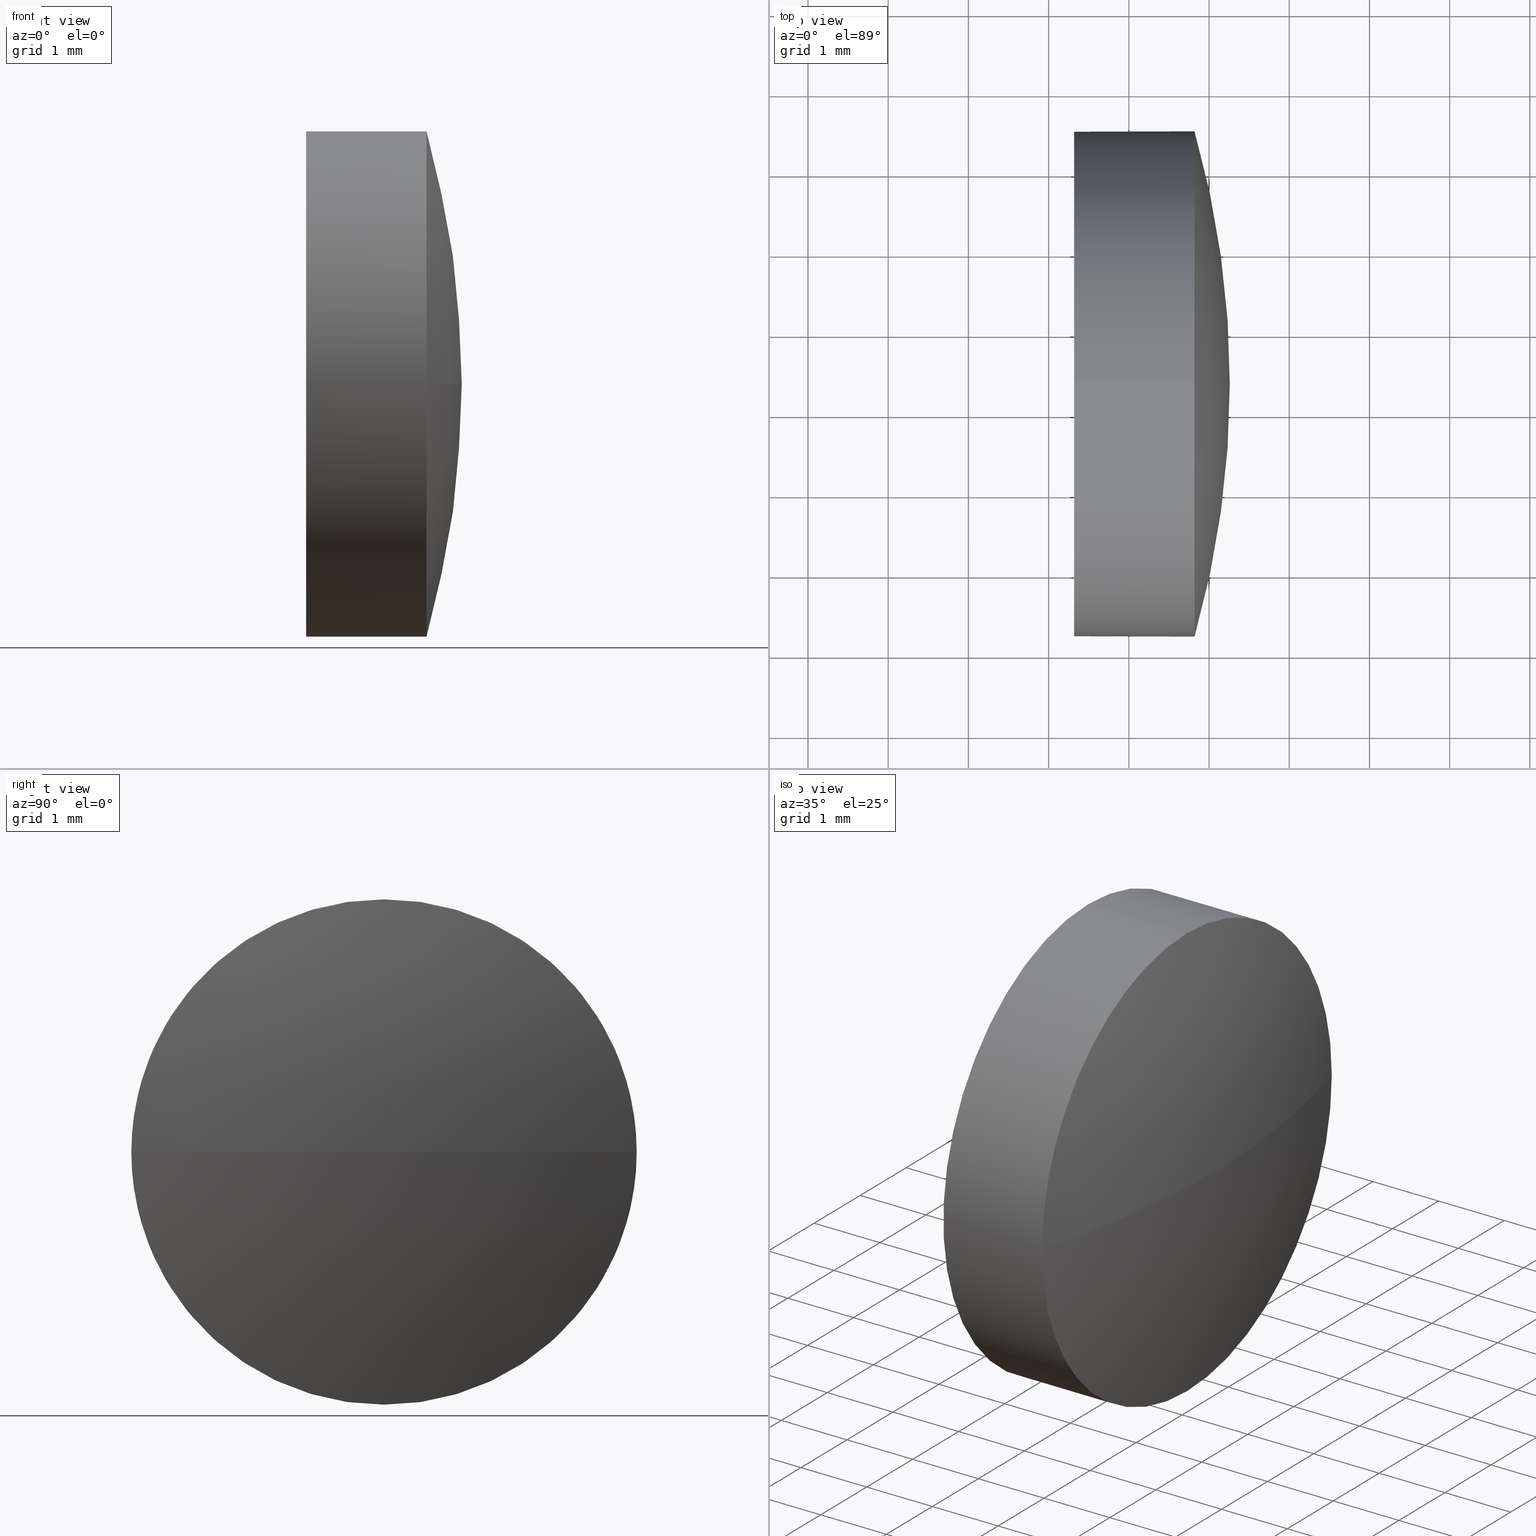
[diagram: canonical four-view strip — front | top / right | iso, engineering-drawing reading convention]
A machine part, canonical four-view strip (front | top / right | iso — engineering-drawing reading convention). The complete STEP part file that produces these views, byte-faithful:
ISO-10303-21;
HEADER;
FILE_DESCRIPTION (( 'STEP AP214' ),
    '1' );
FILE_NAME ('100353.STEP',
    '2019-06-03T03:50:09',
    ( '' ),
    ( '' ),
    'SwSTEP 2.0',
    'SolidWorks 2016',
    '' );
FILE_SCHEMA (( 'AUTOMOTIVE_DESIGN' ));
ENDSEC;

DATA;
#1 = APPLICATION_PROTOCOL_DEFINITION ( 'draft international standard', 'automotive_design', 1998, #130 ) ;
#2 = PRESENTATION_LAYER_ASSIGNMENT (  '', '', ( #144 ) ) ;
#3 = VERTEX_POINT ( 'NONE', #67 ) ;
#4 = ORIENTED_EDGE ( 'NONE', *, *, #133, .T. ) ;
#5 = CIRCLE ( 'NONE', #92, 3.150000000000013700 ) ;
#6 = VERTEX_POINT ( 'NONE', #104 ) ;
#7 = CARTESIAN_POINT ( 'NONE',  ( 555.8187275599364100, 146.3616492016622000, -3.150000000000013700 ) ) ;
#8 = PRODUCT ( '100353', '100353', '', ( #155 ) ) ;
#9 = FACE_OUTER_BOUND ( 'NONE', #122, .T. ) ;
#10 = ADVANCED_FACE ( 'NONE', ( #41 ), #69, .F. ) ;
#11 = ORIENTED_EDGE ( 'NONE', *, *, #105, .F. ) ;
#12 = DIRECTION ( 'NONE',  ( 0.0000000000000000000, 0.0000000000000000000, 1.000000000000000000 ) ) ;
#13 = MECHANICAL_DESIGN_GEOMETRIC_PRESENTATION_REPRESENTATION (  '', ( #144 ), #65 ) ;
#14 = DIRECTION ( 'NONE',  ( -1.000000000000000000, -0.0000000000000000000, -0.0000000000000000000 ) ) ;
#15 = AXIS2_PLACEMENT_3D ( 'NONE', #125, #43, #168 ) ;
#16 = ADVANCED_FACE ( 'NONE', ( #91 ), #38, .T. ) ;
#17 = DIRECTION ( 'NONE',  ( -1.000000000000000000, -0.0000000000000000000, -0.0000000000000000000 ) ) ;
#18 = VERTEX_POINT ( 'NONE', #179 ) ;
#19 = EDGE_CURVE ( 'NONE', #25, #3, #103, .T. ) ;
#20 = ORIENTED_EDGE ( 'NONE', *, *, #37, .T. ) ;
#21 = SHAPE_DEFINITION_REPRESENTATION ( #114, #121 ) ;
#22 = EDGE_LOOP ( 'NONE', ( #184, #119, #149, #157 ) ) ;
#23 = ORIENTED_EDGE ( 'NONE', *, *, #19, .F. ) ;
#24 = FACE_OUTER_BOUND ( 'NONE', #93, .T. ) ;
#25 = VERTEX_POINT ( 'NONE', #177 ) ;
#26 = EDGE_CURVE ( 'NONE', #25, #63, #170, .T. ) ;
#27 = CARTESIAN_POINT ( 'NONE',  ( 544.7631593781184200, 146.3616492016621700, 0.0000000000000000000 ) ) ;
#28 =( NAMED_UNIT ( * ) SI_UNIT ( $, .STERADIAN. ) SOLID_ANGLE_UNIT ( ) );
#29 = CARTESIAN_POINT ( 'NONE',  ( 553.4580894711874600, 146.3616492016622000, -3.150000000000013700 ) ) ;
#30 = MECHANICAL_DESIGN_GEOMETRIC_PRESENTATION_REPRESENTATION (  '', ( #52 ), #175 ) ;
#31 = CARTESIAN_POINT ( 'NONE',  ( 544.7631593781184200, 146.3616492016621700, 0.0000000000000000000 ) ) ;
#32 = EDGE_LOOP ( 'NONE', ( #113, #20, #174, #11 ) ) ;
#33 = CARTESIAN_POINT ( 'NONE',  ( 0.0000000000000000000, 0.0000000000000000000, 0.0000000000000000000 ) ) ;
#34 = APPLICATION_PROTOCOL_DEFINITION ( 'draft international standard', 'automotive_design', 1998, #89 ) ;
#35 = EDGE_CURVE ( 'NONE', #3, #6, #75, .T. ) ;
#36 =( NAMED_UNIT ( * ) SI_UNIT ( $, .STERADIAN. ) SOLID_ANGLE_UNIT ( ) );
#37 = EDGE_CURVE ( 'NONE', #78, #18, #54, .T. ) ;
#38 = SPHERICAL_SURFACE ( 'NONE', #64, 11.49556818181808300 ) ;
#39 = VERTEX_POINT ( 'NONE', #7 ) ;
#40 = UNCERTAINTY_MEASURE_WITH_UNIT (LENGTH_MEASURE( 1.000000000000000100E-005 ), #102, 'distance_accuracy_value', 'NONE');
#41 = FACE_OUTER_BOUND ( 'NONE', #60, .T. ) ;
#42 = DIRECTION ( 'NONE',  ( 0.0000000000000000000, 0.0000000000000000000, 1.000000000000000000 ) ) ;
#43 = DIRECTION ( 'NONE',  ( -1.000000000000000000, -0.0000000000000000000, -0.0000000000000000000 ) ) ;
#44 = DIRECTION ( 'NONE',  ( -0.0000000000000000000, 0.0000000000000000000, -1.000000000000000000 ) ) ;
#45 = DIRECTION ( 'NONE',  ( 0.0000000000000000000, 0.0000000000000000000, 1.000000000000000000 ) ) ;
#46 = UNCERTAINTY_MEASURE_WITH_UNIT (LENGTH_MEASURE( 1.000000000000000100E-005 ), #173, 'distance_accuracy_value', 'NONE');
#47 = AXIS2_PLACEMENT_3D ( 'NONE', #127, #57, #100 ) ;
#48 =( NAMED_UNIT ( * ) PLANE_ANGLE_UNIT ( ) SI_UNIT ( $, .RADIAN. ) );
#49 = PRODUCT_DEFINITION_FORMATION_WITH_SPECIFIED_SOURCE ( '�κ�', '', #8, .NOT_KNOWN. ) ;
#50 = AXIS2_PLACEMENT_3D ( 'NONE', #107, #14, #12 ) ;
#51 = LINE ( 'NONE', #29, #136 ) ;
#52 = STYLED_ITEM ( 'NONE', ( #153 ), #106 ) ;
#53 = SPHERICAL_SURFACE ( 'NONE', #135, 11.49556818181808300 ) ;
#54 = CIRCLE ( 'NONE', #116, 11.49556818181807200 ) ;
#55 = ORIENTED_EDGE ( 'NONE', *, *, #35, .T. ) ;
#56 =( GEOMETRIC_REPRESENTATION_CONTEXT ( 3 ) GLOBAL_UNCERTAINTY_ASSIGNED_CONTEXT ( ( #40 ) ) GLOBAL_UNIT_ASSIGNED_CONTEXT ( ( #102, #48, #36 ) ) REPRESENTATION_CONTEXT ( 'NONE', 'WORKASPACE' ) );
#57 = DIRECTION ( 'NONE',  ( -1.000000000000000000, -0.0000000000000000000, -0.0000000000000000000 ) ) ;
#58 = SURFACE_STYLE_USAGE ( .BOTH. , #81 ) ;
#59 =( LENGTH_UNIT ( ) NAMED_UNIT ( * ) SI_UNIT ( .MILLI., .METRE. ) );
#60 = EDGE_LOOP ( 'NONE', ( #55, #4 ) ) ;
#61 = FILL_AREA_STYLE ('',( #108 ) ) ;
#62 = PRODUCT_DEFINITION_CONTEXT ( 'detailed design', #89, 'design' ) ;
#63 = VERTEX_POINT ( 'NONE', #161 ) ;
#64 = AXIS2_PLACEMENT_3D ( 'NONE', #27, #134, #94 ) ;
#65 =( GEOMETRIC_REPRESENTATION_CONTEXT ( 3 ) GLOBAL_UNCERTAINTY_ASSIGNED_CONTEXT ( ( #46 ) ) GLOBAL_UNIT_ASSIGNED_CONTEXT ( ( #173, #156, #128 ) ) REPRESENTATION_CONTEXT ( 'NONE', 'WORKASPACE' ) );
#66 = SURFACE_STYLE_FILL_AREA ( #151 ) ;
#67 = CARTESIAN_POINT ( 'NONE',  ( 554.3187275599364100, 146.3616492016622000, 3.150000000000013700 ) ) ;
#68 = EDGE_CURVE ( 'NONE', #39, #18, #117, .T. ) ;
#69 = PLANE ( 'NONE',  #138 ) ;
#70 = DIRECTION ( 'NONE',  ( 0.0000000000000000000, 1.000000000000000000, 1.224646799147354200E-016 ) ) ;
#71 = DIRECTION ( 'NONE',  ( -0.0000000000000000000, 0.0000000000000000000, 1.000000000000000000 ) ) ;
#72 = DIRECTION ( 'NONE',  ( 0.0000000000000000000, 0.0000000000000000000, 1.000000000000000000 ) ) ;
#73 = AXIS2_PLACEMENT_3D ( 'NONE', #98, #17, #72 ) ;
#74 = AXIS2_PLACEMENT_3D ( 'NONE', #33, #101, #111 ) ;
#75 = CIRCLE ( 'NONE', #73, 3.150000000000013700 ) ;
#76 = PRESENTATION_LAYER_ASSIGNMENT (  '', '', ( #52 ) ) ;
#77 = ORIENTED_EDGE ( 'NONE', *, *, #19, .T. ) ;
#78 = VERTEX_POINT ( 'NONE', #152 ) ;
#79 = CARTESIAN_POINT ( 'NONE',  ( 553.4580894711874600, 146.3616492016622000, 3.150000000000013700 ) ) ;
#80 = AXIS2_PLACEMENT_3D ( 'NONE', #84, #96, #109 ) ;
#81 = SURFACE_SIDE_STYLE ('',( #66 ) ) ;
#82 = CARTESIAN_POINT ( 'NONE',  ( 544.7631593781184200, 146.3616492016621700, 0.0000000000000000000 ) ) ;
#83 = ORIENTED_EDGE ( 'NONE', *, *, #163, .F. ) ;
#84 = CARTESIAN_POINT ( 'NONE',  ( 555.8187275599364100, 146.3616492016622000, 0.0000000000000000000 ) ) ;
#85 = DIRECTION ( 'NONE',  ( 1.000000000000000000, 0.0000000000000000000, 0.0000000000000000000 ) ) ;
#86 = CARTESIAN_POINT ( 'NONE',  ( 544.7631593781184200, 146.3616492016621700, 0.0000000000000000000 ) ) ;
#87 = SURFACE_SIDE_STYLE ('',( #126 ) ) ;
#88 = EDGE_CURVE ( 'NONE', #18, #25, #5, .T. ) ;
#89 = APPLICATION_CONTEXT ( 'automotive_design' ) ;
#90 = ORIENTED_EDGE ( 'NONE', *, *, #68, .T. ) ;
#91 = FACE_OUTER_BOUND ( 'NONE', #22, .T. ) ;
#92 = AXIS2_PLACEMENT_3D ( 'NONE', #166, #185, #45 ) ;
#93 = EDGE_LOOP ( 'NONE', ( #131, #115, #160, #23, #112 ) ) ;
#94 = DIRECTION ( 'NONE',  ( 0.0000000000000000000, 1.000000000000000000, 0.0000000000000000000 ) ) ;
#95 = ADVANCED_FACE ( 'NONE', ( #123 ), #53, .T. ) ;
#96 = DIRECTION ( 'NONE',  ( -1.000000000000000000, -0.0000000000000000000, -0.0000000000000000000 ) ) ;
#97 = DIRECTION ( 'NONE',  ( -1.000000000000000000, -0.0000000000000000000, -0.0000000000000000000 ) ) ;
#98 = CARTESIAN_POINT ( 'NONE',  ( 554.3187275599364100, 146.3616492016622000, 0.0000000000000000000 ) ) ;
#99 = VECTOR ( 'NONE', #162, 1000.000000000000000 ) ;
#100 = DIRECTION ( 'NONE',  ( 0.0000000000000000000, 0.0000000000000000000, 1.000000000000000000 ) ) ;
#101 = DIRECTION ( 'NONE',  ( 0.0000000000000000000, 0.0000000000000000000, 1.000000000000000000 ) ) ;
#102 =( LENGTH_UNIT ( ) NAMED_UNIT ( * ) SI_UNIT ( .MILLI., .METRE. ) );
#103 = LINE ( 'NONE', #79, #99 ) ;
#104 = CARTESIAN_POINT ( 'NONE',  ( 554.3187275599364100, 146.3616492016622000, -3.150000000000013700 ) ) ;
#105 = EDGE_CURVE ( 'NONE', #63, #39, #158, .T. ) ;
#106 = MANIFOLD_SOLID_BREP ( '��ת1', #159 ) ;
#107 = CARTESIAN_POINT ( 'NONE',  ( 553.4580894711874600, 146.3616492016622000, 0.0000000000000000000 ) ) ;
#108 = FILL_AREA_STYLE_COLOUR ( '', #132 ) ;
#109 = DIRECTION ( 'NONE',  ( 0.0000000000000000000, 0.0000000000000000000, 1.000000000000000000 ) ) ;
#110 = COLOUR_RGB ( '',1.000000000000000000, 1.000000000000000000, 1.000000000000000000 ) ;
#111 = DIRECTION ( 'NONE',  ( 1.000000000000000000, 0.0000000000000000000, 0.0000000000000000000 ) ) ;
#112 = ORIENTED_EDGE ( 'NONE', *, *, #26, .T. ) ;
#113 = ORIENTED_EDGE ( 'NONE', *, *, #176, .F. ) ;
#114 = PRODUCT_DEFINITION_SHAPE ( 'NONE', 'NONE',  #167 ) ;
#115 = ORIENTED_EDGE ( 'NONE', *, *, #163, .T. ) ;
#116 = AXIS2_PLACEMENT_3D ( 'NONE', #86, #171, #70 ) ;
#117 = CIRCLE ( 'NONE', #80, 3.150000000000013700 ) ;
#118 = PRODUCT_RELATED_PRODUCT_CATEGORY ( 'part', '', ( #8 ) ) ;
#119 = ORIENTED_EDGE ( 'NONE', *, *, #176, .T. ) ;
#120 = CARTESIAN_POINT ( 'NONE',  ( 554.3187275599364100, 146.3616492016622000, 0.0000000000000000000 ) ) ;
#121 = ADVANCED_BREP_SHAPE_REPRESENTATION ( '100353', ( #106, #74 ), #56 ) ;
#122 = EDGE_LOOP ( 'NONE', ( #83, #90, #145, #77, #148 ) ) ;
#123 = FACE_OUTER_BOUND ( 'NONE', #32, .T. ) ;
#124 = DIRECTION ( 'NONE',  ( -1.000000000000000000, -0.0000000000000000000, -0.0000000000000000000 ) ) ;
#125 = CARTESIAN_POINT ( 'NONE',  ( 553.4580894711874600, 146.3616492016622000, 0.0000000000000000000 ) ) ;
#126 = SURFACE_STYLE_FILL_AREA ( #61 ) ;
#127 = CARTESIAN_POINT ( 'NONE',  ( 555.8187275599364100, 146.3616492016622000, 0.0000000000000000000 ) ) ;
#128 =( NAMED_UNIT ( * ) SI_UNIT ( $, .STERADIAN. ) SOLID_ANGLE_UNIT ( ) );
#129 = AXIS2_PLACEMENT_3D ( 'NONE', #154, #97, #42 ) ;
#130 = APPLICATION_CONTEXT ( 'automotive_design' ) ;
#131 = ORIENTED_EDGE ( 'NONE', *, *, #105, .T. ) ;
#132 = COLOUR_RGB ( '',1.000000000000000000, 1.000000000000000000, 1.000000000000000000 ) ;
#133 = EDGE_CURVE ( 'NONE', #6, #3, #178, .T. ) ;
#134 = DIRECTION ( 'NONE',  ( -0.0000000000000000000, 0.0000000000000000000, -1.000000000000000000 ) ) ;
#135 = AXIS2_PLACEMENT_3D ( 'NONE', #82, #44, #182 ) ;
#136 = VECTOR ( 'NONE', #150, 1000.000000000000000 ) ;
#137 = PRESENTATION_STYLE_ASSIGNMENT (( #140 ) ) ;
#138 = AXIS2_PLACEMENT_3D ( 'NONE', #120, #165, #146 ) ;
#139 = FILL_AREA_STYLE_COLOUR ( '', #110 ) ;
#140 = SURFACE_STYLE_USAGE ( .BOTH. , #87 ) ;
#141 = UNCERTAINTY_MEASURE_WITH_UNIT (LENGTH_MEASURE( 1.000000000000000100E-005 ), #59, 'distance_accuracy_value', 'NONE');
#142 = AXIS2_PLACEMENT_3D ( 'NONE', #31, #71, #85 ) ;
#143 = CIRCLE ( 'NONE', #142, 11.49556818181807200 ) ;
#144 = STYLED_ITEM ( 'NONE', ( #137 ), #121 ) ;
#145 = ORIENTED_EDGE ( 'NONE', *, *, #88, .T. ) ;
#146 = DIRECTION ( 'NONE',  ( 0.0000000000000000000, 0.0000000000000000000, -1.000000000000000000 ) ) ;
#147 = CYLINDRICAL_SURFACE ( 'NONE', #50, 3.150000000000013700 ) ;
#148 = ORIENTED_EDGE ( 'NONE', *, *, #133, .F. ) ;
#149 = ORIENTED_EDGE ( 'NONE', *, *, #26, .F. ) ;
#150 = DIRECTION ( 'NONE',  ( -1.000000000000000000, -0.0000000000000000000, -0.0000000000000000000 ) ) ;
#151 = FILL_AREA_STYLE ('',( #139 ) ) ;
#152 = CARTESIAN_POINT ( 'NONE',  ( 556.2587275599364600, 146.3616492016621700, 0.0000000000000000000 ) ) ;
#153 = PRESENTATION_STYLE_ASSIGNMENT (( #58 ) ) ;
#154 = CARTESIAN_POINT ( 'NONE',  ( 555.8187275599364100, 146.3616492016622000, 0.0000000000000000000 ) ) ;
#155 = PRODUCT_CONTEXT ( 'NONE', #130, 'mechanical' ) ;
#156 =( NAMED_UNIT ( * ) PLANE_ANGLE_UNIT ( ) SI_UNIT ( $, .RADIAN. ) );
#157 = ORIENTED_EDGE ( 'NONE', *, *, #88, .F. ) ;
#158 = CIRCLE ( 'NONE', #129, 3.150000000000013700 ) ;
#159 = CLOSED_SHELL ( 'NONE', ( #181, #95, #16, #172, #10 ) ) ;
#160 = ORIENTED_EDGE ( 'NONE', *, *, #35, .F. ) ;
#161 = CARTESIAN_POINT ( 'NONE',  ( 555.8187275599364100, 149.5116492016622100, 0.0000000000000000000 ) ) ;
#162 = DIRECTION ( 'NONE',  ( -1.000000000000000000, -0.0000000000000000000, -0.0000000000000000000 ) ) ;
#163 = EDGE_CURVE ( 'NONE', #39, #6, #51, .T. ) ;
#164 = CYLINDRICAL_SURFACE ( 'NONE', #15, 3.150000000000013700 ) ;
#165 = DIRECTION ( 'NONE',  ( 1.000000000000000000, 0.0000000000000000000, 0.0000000000000000000 ) ) ;
#166 = CARTESIAN_POINT ( 'NONE',  ( 555.8187275599364100, 146.3616492016622000, 0.0000000000000000000 ) ) ;
#167 = PRODUCT_DEFINITION ( 'δ֪', '', #49, #62 ) ;
#168 = DIRECTION ( 'NONE',  ( 0.0000000000000000000, 0.0000000000000000000, 1.000000000000000000 ) ) ;
#169 = CARTESIAN_POINT ( 'NONE',  ( 554.3187275599364100, 146.3616492016622000, 0.0000000000000000000 ) ) ;
#170 = CIRCLE ( 'NONE', #47, 3.150000000000013700 ) ;
#171 = DIRECTION ( 'NONE',  ( 0.0000000000000000000, 1.224646799147353200E-016, -1.000000000000000000 ) ) ;
#172 = ADVANCED_FACE ( 'NONE', ( #9 ), #147, .T. ) ;
#173 =( LENGTH_UNIT ( ) NAMED_UNIT ( * ) SI_UNIT ( .MILLI., .METRE. ) );
#174 = ORIENTED_EDGE ( 'NONE', *, *, #68, .F. ) ;
#175 =( GEOMETRIC_REPRESENTATION_CONTEXT ( 3 ) GLOBAL_UNCERTAINTY_ASSIGNED_CONTEXT ( ( #141 ) ) GLOBAL_UNIT_ASSIGNED_CONTEXT ( ( #59, #180, #28 ) ) REPRESENTATION_CONTEXT ( 'NONE', 'WORKASPACE' ) );
#176 = EDGE_CURVE ( 'NONE', #78, #63, #143, .T. ) ;
#177 = CARTESIAN_POINT ( 'NONE',  ( 555.8187275599364100, 146.3616492016622000, 3.150000000000013700 ) ) ;
#178 = CIRCLE ( 'NONE', #186, 3.150000000000013700 ) ;
#179 = CARTESIAN_POINT ( 'NONE',  ( 555.8187275599364100, 143.2116492016621700, -3.857637417314145400E-016 ) ) ;
#180 =( NAMED_UNIT ( * ) PLANE_ANGLE_UNIT ( ) SI_UNIT ( $, .RADIAN. ) );
#181 = ADVANCED_FACE ( 'NONE', ( #24 ), #164, .T. ) ;
#182 = DIRECTION ( 'NONE',  ( 0.0000000000000000000, 1.000000000000000000, 0.0000000000000000000 ) ) ;
#183 = DIRECTION ( 'NONE',  ( 0.0000000000000000000, 0.0000000000000000000, 1.000000000000000000 ) ) ;
#184 = ORIENTED_EDGE ( 'NONE', *, *, #37, .F. ) ;
#185 = DIRECTION ( 'NONE',  ( -1.000000000000000000, -0.0000000000000000000, -0.0000000000000000000 ) ) ;
#186 = AXIS2_PLACEMENT_3D ( 'NONE', #169, #124, #183 ) ;
ENDSEC;
END-ISO-10303-21;
